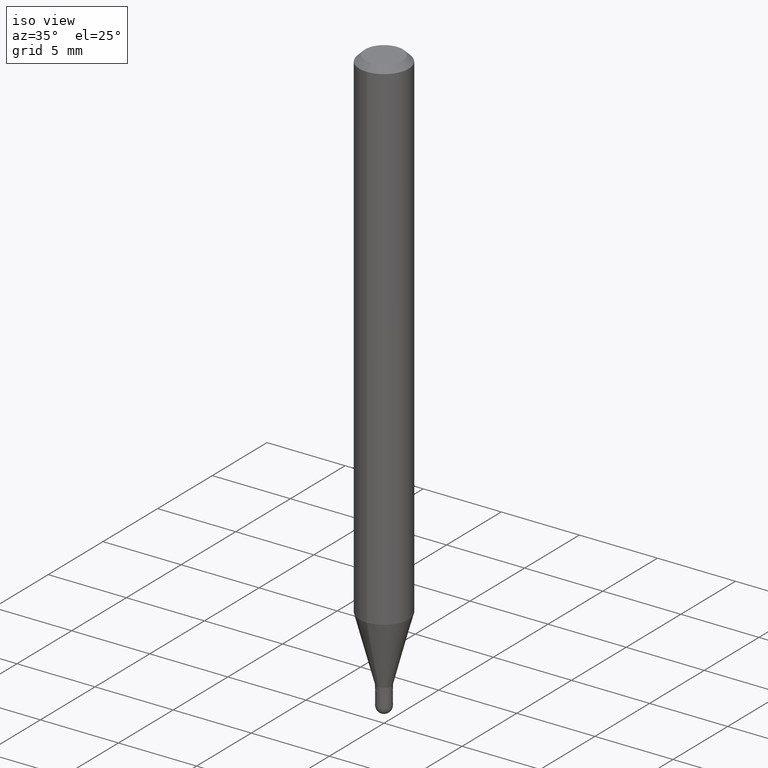
[diagram: clean part render]
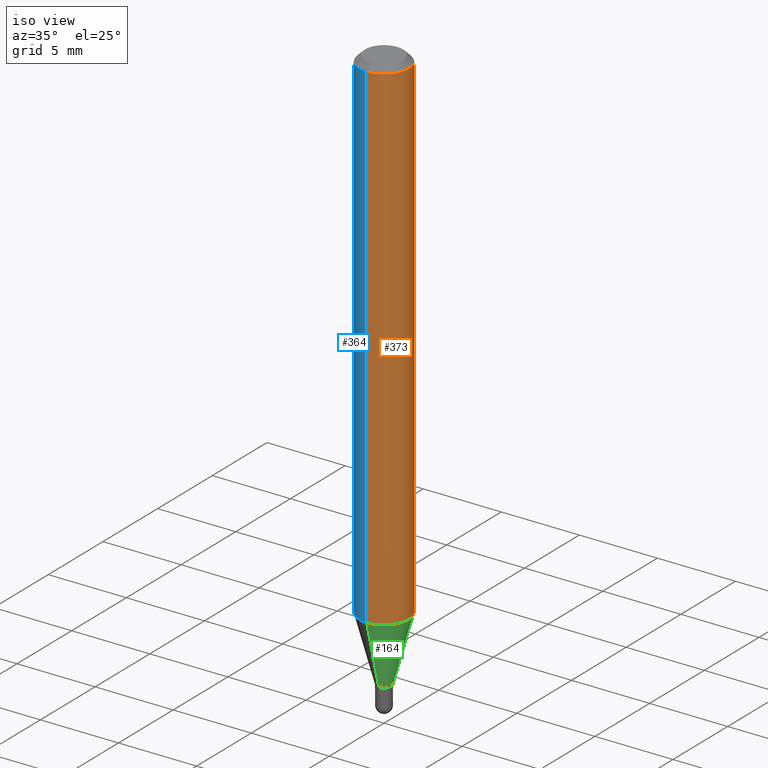
[diagram: same view with three faces highlighted in distinct colors, each labeled with its STEP entity id]
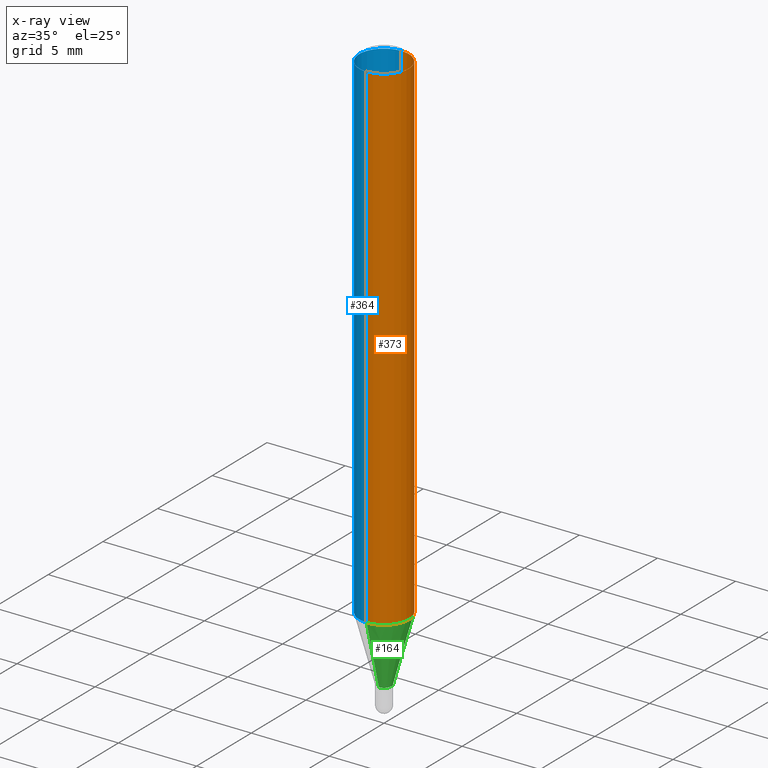
[diagram: x-ray of the same camera — body ghosted, the three highlighted faces saturated]
A machine part, iso view with three faces highlighted in distinct colors.
The next image is the same camera in x-ray (body ghosted, the three faces saturated) — at least one of them is partly hidden behind the body in this view.
Their STEP definitions:

[orange] entity #373 — the highlighted cylindrical surface (edge-blend (fillet) strip) has radius 1.5875 mm, axis along (-0, 0, 1).
#1 = CARTESIAN_POINT ( 'NONE',  ( -4.364351673553912750E-16, -0.06250000000000005551, -0.01499999999999954321 ) ) ;
#32 = ORIENTED_EDGE ( 'NONE', *, *, #412, .T. ) ;
#35 = EDGE_CURVE ( 'NONE', #492, #461, #169, .T. ) ;
#36 = CYLINDRICAL_SURFACE ( 'NONE', #288, 0.06250000000000000000 ) ;
#39 = DIRECTION ( 'NONE',  ( -2.445455008410709746E-29, 3.491501098041445170E-15, 1.000000000000000000 ) ) ;
#64 = VERTEX_POINT ( 'NONE', #1 ) ;
#74 = ORIENTED_EDGE ( 'NONE', *, *, #280, .F. ) ;
#84 = DIRECTION ( 'NONE',  ( -6.982962677686265922E-15, -1.000000000000000000, 3.491501098041445170E-15 ) ) ;
#85 = FACE_OUTER_BOUND ( 'NONE', #236, .T. ) ;
#94 = CARTESIAN_POINT ( 'NONE',  ( 4.440892098500933817E-16, 0.06249999999999555217, -1.269789764466969562 ) ) ;
#108 = ORIENTED_EDGE ( 'NONE', *, *, #425, .F. ) ;
#118 = LINE ( 'NONE', #501, #369 ) ;
#129 = CARTESIAN_POINT ( 'NONE',  ( -4.364351673553607559E-16, -0.06250000000000444089, -1.269789764466969118 ) ) ;
#131 = VECTOR ( 'NONE', #261, 39.37007874015748143 ) ;
#169 = LINE ( 'NONE', #290, #131 ) ;
#201 = ORIENTED_EDGE ( 'NONE', *, *, #35, .T. ) ;
#202 = DIRECTION ( 'NONE',  ( -2.445455008410709746E-29, 3.491501098041445170E-15, 1.000000000000000000 ) ) ;
#203 = CARTESIAN_POINT ( 'NONE',  ( 0.000000000000000000, 0.000000000000000000, 0.000000000000000000 ) ) ;
#209 = DIRECTION ( 'NONE',  ( -6.982962677686265922E-15, -1.000000000000000000, 4.370956789862821150E-15 ) ) ;
#236 = EDGE_LOOP ( 'NONE', ( #32, #201, #74, #108 ) ) ;
#259 = DIRECTION ( 'NONE',  ( -6.982962677686265922E-15, -1.000000000000000000, 3.483106191921935554E-15 ) ) ;
#261 = DIRECTION ( 'NONE',  ( -2.445455008410709746E-29, 3.491501098041445564E-15, 1.000000000000000000 ) ) ;
#274 = VERTEX_POINT ( 'NONE', #129 ) ;
#280 = EDGE_CURVE ( 'NONE', #64, #461, #463, .T. ) ;
#284 = DIRECTION ( 'NONE',  ( -2.445455008410709746E-29, 3.491501098041445564E-15, 1.000000000000000000 ) ) ;
#288 = AXIS2_PLACEMENT_3D ( 'NONE', #203, #202, #84 ) ;
#290 = CARTESIAN_POINT ( 'NONE',  ( 4.440892098500625669E-16, 0.06250000000000000000, -2.182188186275903231E-16 ) ) ;
#297 = CARTESIAN_POINT ( 'NONE',  ( 3.668182512616006343E-31, -5.237251647062084431E-17, -0.01499999999999976179 ) ) ;
#298 = AXIS2_PLACEMENT_3D ( 'NONE', #397, #39, #209 ) ;
#305 = CIRCLE ( 'NONE', #298, 0.06250000000000000000 ) ;
#369 = VECTOR ( 'NONE', #284, 39.37007874015748143 ) ;
#373 = ADVANCED_FACE ( 'NONE', ( #85 ), #36, .T. ) ;
#380 = CARTESIAN_POINT ( 'NONE',  ( 4.440892098500937762E-16, 0.06249999999999993755, -0.01499999999999997863 ) ) ;
#397 = CARTESIAN_POINT ( 'NONE',  ( 3.105213739144405551E-29, -4.433472356918211735E-15, -1.269789764466969340 ) ) ;
#400 = DIRECTION ( 'NONE',  ( -2.445455008410709746E-29, 3.491501098041445170E-15, 1.000000000000000000 ) ) ;
#412 = EDGE_CURVE ( 'NONE', #274, #492, #305, .T. ) ;
#425 = EDGE_CURVE ( 'NONE', #274, #64, #118, .T. ) ;
#461 = VERTEX_POINT ( 'NONE', #380 ) ;
#463 = CIRCLE ( 'NONE', #471, 0.06250000000000000000 ) ;
#471 = AXIS2_PLACEMENT_3D ( 'NONE', #297, #400, #259 ) ;
#492 = VERTEX_POINT ( 'NONE', #94 ) ;
#501 = CARTESIAN_POINT ( 'NONE',  ( -4.364351673553916201E-16, -0.06250000000000000000, 2.182188186275903231E-16 ) ) ;

[blue] entity #364 — the highlighted cylindrical surface (edge-blend (fillet) strip) has radius 1.5875 mm, axis along (-0, 0, 1).
#1 = CARTESIAN_POINT ( 'NONE',  ( -4.364351673553912750E-16, -0.06250000000000005551, -0.01499999999999954321 ) ) ;
#6 = DIRECTION ( 'NONE',  ( -6.982962677686265922E-15, -1.000000000000000000, 3.483106191921935554E-15 ) ) ;
#14 = AXIS2_PLACEMENT_3D ( 'NONE', #462, #195, #119 ) ;
#24 = CYLINDRICAL_SURFACE ( 'NONE', #14, 0.06250000000000000000 ) ;
#33 = EDGE_CURVE ( 'NONE', #461, #64, #189, .T. ) ;
#35 = EDGE_CURVE ( 'NONE', #492, #461, #169, .T. ) ;
#46 = AXIS2_PLACEMENT_3D ( 'NONE', #71, #273, #350 ) ;
#60 = EDGE_LOOP ( 'NONE', ( #450, #388, #494, #246 ) ) ;
#64 = VERTEX_POINT ( 'NONE', #1 ) ;
#71 = CARTESIAN_POINT ( 'NONE',  ( 3.105213739144405551E-29, -4.433472356918211735E-15, -1.269789764466969340 ) ) ;
#94 = CARTESIAN_POINT ( 'NONE',  ( 4.440892098500933817E-16, 0.06249999999999555217, -1.269789764466969562 ) ) ;
#117 = AXIS2_PLACEMENT_3D ( 'NONE', #371, #210, #6 ) ;
#118 = LINE ( 'NONE', #501, #369 ) ;
#119 = DIRECTION ( 'NONE',  ( -6.982962677686265922E-15, -1.000000000000000000, 3.491501098041445170E-15 ) ) ;
#129 = CARTESIAN_POINT ( 'NONE',  ( -4.364351673553607559E-16, -0.06250000000000444089, -1.269789764466969118 ) ) ;
#131 = VECTOR ( 'NONE', #261, 39.37007874015748143 ) ;
#169 = LINE ( 'NONE', #290, #131 ) ;
#189 = CIRCLE ( 'NONE', #117, 0.06250000000000000000 ) ;
#195 = DIRECTION ( 'NONE',  ( -2.445455008410709746E-29, 3.491501098041445170E-15, 1.000000000000000000 ) ) ;
#210 = DIRECTION ( 'NONE',  ( -2.445455008410709746E-29, 3.491501098041445170E-15, 1.000000000000000000 ) ) ;
#235 = FACE_OUTER_BOUND ( 'NONE', #60, .T. ) ;
#246 = ORIENTED_EDGE ( 'NONE', *, *, #33, .F. ) ;
#261 = DIRECTION ( 'NONE',  ( -2.445455008410709746E-29, 3.491501098041445564E-15, 1.000000000000000000 ) ) ;
#273 = DIRECTION ( 'NONE',  ( -2.445455008410709746E-29, 3.491501098041445170E-15, 1.000000000000000000 ) ) ;
#274 = VERTEX_POINT ( 'NONE', #129 ) ;
#284 = DIRECTION ( 'NONE',  ( -2.445455008410709746E-29, 3.491501098041445564E-15, 1.000000000000000000 ) ) ;
#290 = CARTESIAN_POINT ( 'NONE',  ( 4.440892098500625669E-16, 0.06250000000000000000, -2.182188186275903231E-16 ) ) ;
#347 = EDGE_CURVE ( 'NONE', #492, #274, #414, .T. ) ;
#350 = DIRECTION ( 'NONE',  ( -6.982962677686265922E-15, -1.000000000000000000, 4.370956789862821150E-15 ) ) ;
#364 = ADVANCED_FACE ( 'NONE', ( #235 ), #24, .T. ) ;
#369 = VECTOR ( 'NONE', #284, 39.37007874015748143 ) ;
#371 = CARTESIAN_POINT ( 'NONE',  ( 3.668182512616006343E-31, -5.237251647062084431E-17, -0.01499999999999976179 ) ) ;
#380 = CARTESIAN_POINT ( 'NONE',  ( 4.440892098500937762E-16, 0.06249999999999993755, -0.01499999999999997863 ) ) ;
#388 = ORIENTED_EDGE ( 'NONE', *, *, #347, .T. ) ;
#414 = CIRCLE ( 'NONE', #46, 0.06250000000000000000 ) ;
#425 = EDGE_CURVE ( 'NONE', #274, #64, #118, .T. ) ;
#450 = ORIENTED_EDGE ( 'NONE', *, *, #35, .F. ) ;
#461 = VERTEX_POINT ( 'NONE', #380 ) ;
#462 = CARTESIAN_POINT ( 'NONE',  ( 0.000000000000000000, 0.000000000000000000, 0.000000000000000000 ) ) ;
#492 = VERTEX_POINT ( 'NONE', #94 ) ;
#494 = ORIENTED_EDGE ( 'NONE', *, *, #425, .T. ) ;
#501 = CARTESIAN_POINT ( 'NONE',  ( -4.364351673553916201E-16, -0.06250000000000000000, 2.182188186275903231E-16 ) ) ;

[green] entity #164 — the highlighted conical surface has half-angle 15 deg.
#13 = AXIS2_PLACEMENT_3D ( 'NONE', #482, #368, #47 ) ;
#19 = ORIENTED_EDGE ( 'NONE', *, *, #412, .F. ) ;
#25 = ORIENTED_EDGE ( 'NONE', *, *, #148, .F. ) ;
#39 = DIRECTION ( 'NONE',  ( -2.445455008410709746E-29, 3.491501098041445170E-15, 1.000000000000000000 ) ) ;
#44 = CARTESIAN_POINT ( 'NONE',  ( 3.506782482060956982E-29, -5.006812574591430922E-15, -1.433999999999999719 ) ) ;
#47 = DIRECTION ( 'NONE',  ( -6.982962677686265922E-15, -1.000000000000000000, 0.000000000000000000 ) ) ;
#48 = CARTESIAN_POINT ( 'NONE',  ( -1.291848095371603260E-16, -0.01850000000000492917, -1.433999999999999719 ) ) ;
#53 = EDGE_CURVE ( 'NONE', #240, #146, #434, .T. ) ;
#69 = VECTOR ( 'NONE', #326, 39.37007874015749564 ) ;
#82 = CONICAL_SURFACE ( 'NONE', #207, 0.01849999999999992276, 0.2617993877991501850 ) ;
#94 = CARTESIAN_POINT ( 'NONE',  ( 4.440892098500933817E-16, 0.06249999999999555217, -1.269789764466969562 ) ) ;
#97 = CARTESIAN_POINT ( 'NONE',  ( 1.314504061156530405E-16, 0.01849999999999491634, -1.433999999999999719 ) ) ;
#129 = CARTESIAN_POINT ( 'NONE',  ( -4.364351673553607559E-16, -0.06250000000000444089, -1.269789764466969118 ) ) ;
#142 = VECTOR ( 'NONE', #370, 39.37007874015748143 ) ;
#146 = VERTEX_POINT ( 'NONE', #490 ) ;
#148 = EDGE_CURVE ( 'NONE', #240, #274, #331, .T. ) ;
#164 = ADVANCED_FACE ( 'NONE', ( #336 ), #82, .T. ) ;
#177 = CARTESIAN_POINT ( 'NONE',  ( -1.291848095371603260E-16, -0.01850000000000492917, -1.433999999999999719 ) ) ;
#207 = AXIS2_PLACEMENT_3D ( 'NONE', #44, #216, #372 ) ;
#209 = DIRECTION ( 'NONE',  ( -6.982962677686265922E-15, -1.000000000000000000, 4.370956789862821150E-15 ) ) ;
#211 = LINE ( 'NONE', #97, #142 ) ;
#216 = DIRECTION ( 'NONE',  ( -2.445455008410709746E-29, 3.491501098041445170E-15, 1.000000000000000000 ) ) ;
#240 = VERTEX_POINT ( 'NONE', #48 ) ;
#254 = EDGE_CURVE ( 'NONE', #146, #492, #211, .T. ) ;
#274 = VERTEX_POINT ( 'NONE', #129 ) ;
#298 = AXIS2_PLACEMENT_3D ( 'NONE', #397, #39, #209 ) ;
#305 = CIRCLE ( 'NONE', #298, 0.06250000000000000000 ) ;
#306 = ORIENTED_EDGE ( 'NONE', *, *, #254, .T. ) ;
#308 = EDGE_LOOP ( 'NONE', ( #411, #306, #19, #25 ) ) ;
#326 = DIRECTION ( 'NONE',  ( -1.807323732225329350E-15, -0.2588190451025180194, 0.9659258262890689783 ) ) ;
#331 = LINE ( 'NONE', #177, #69 ) ;
#336 = FACE_OUTER_BOUND ( 'NONE', #308, .T. ) ;
#368 = DIRECTION ( 'NONE',  ( -2.445455008410709746E-29, 3.491501098041445170E-15, 1.000000000000000000 ) ) ;
#370 = DIRECTION ( 'NONE',  ( 1.839019923739599526E-15, 0.2588190451025248473, 0.9659258262890670910 ) ) ;
#372 = DIRECTION ( 'NONE',  ( -6.982962677686265922E-15, -1.000000000000000000, 0.000000000000000000 ) ) ;
#397 = CARTESIAN_POINT ( 'NONE',  ( 3.105213739144405551E-29, -4.433472356918211735E-15, -1.269789764466969340 ) ) ;
#411 = ORIENTED_EDGE ( 'NONE', *, *, #53, .T. ) ;
#412 = EDGE_CURVE ( 'NONE', #274, #492, #305, .T. ) ;
#434 = CIRCLE ( 'NONE', #13, 0.01849999999999992276 ) ;
#482 = CARTESIAN_POINT ( 'NONE',  ( 3.506782482060956982E-29, -5.006812574591430922E-15, -1.433999999999999719 ) ) ;
#490 = CARTESIAN_POINT ( 'NONE',  ( 2.877698079828734700E-16, 0.01849999999999491634, -1.433999999999999719 ) ) ;
#492 = VERTEX_POINT ( 'NONE', #94 ) ;